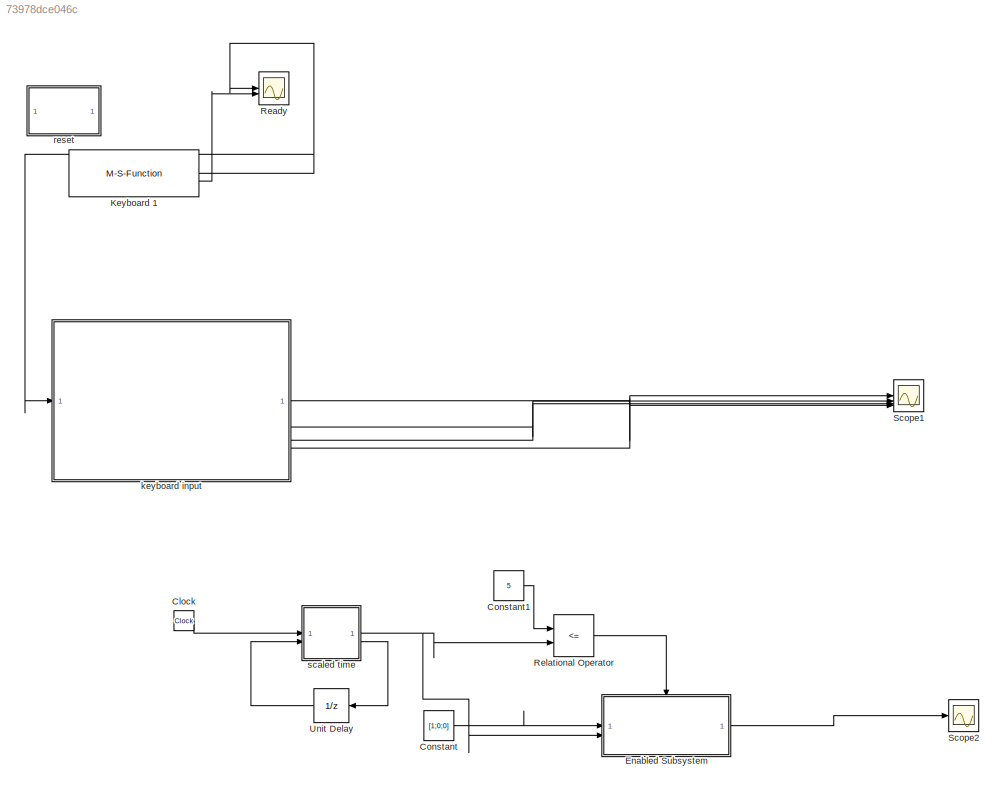
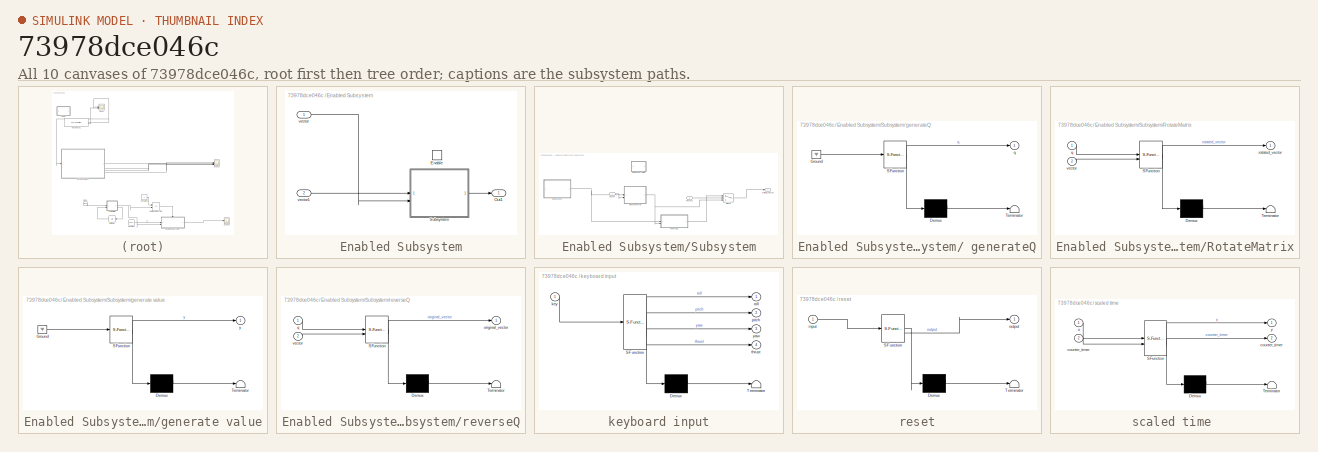
[diagram: thumbnail index - all 10 canvases of the model, root first then tree order]
MODEL slx_73978dce046c
KIND model
CONFIG AbsTol = auto
CONFIG EnableMultiTasking = off
CONFIG FixedStep = 0.01
CONFIG MaxStep = auto
CONFIG MinStep = auto
CONFIG RelTol = 1e-3
CONFIG SampleTimeConstraint = Unconstrained
CONFIG SolverName = FixedStepAuto
CONFIG StartTime = 0.0
CONFIG StopTime = inf
BLOCK [Clock] Clock
BLOCK [Constant] Constant
  Value = [1;0;0]
BLOCK [Constant] Constant1
  Value = 5
BLOCK [SubSystem] Enabled Subsystem
  TreatAsAtomicUnit = on
BLOCK [EnablePort] Enabled Subsystem/Enable
BLOCK [Outport] Enabled Subsystem/Out1
BLOCK [SubSystem] Enabled Subsystem/Subsystem
BLOCK [SubSystem] Enabled Subsystem/Subsystem/ generateQ
  ErrorFcn = Stateflow.Translate.translate
  PermitHierarchicalResolution = ExplicitOnly
  SFBlockType = MATLAB Function
  TreatAsAtomicUnit = on
BLOCK [Demux] Enabled Subsystem/Subsystem/ generateQ/ Demux 
  Outputs = 1
BLOCK [Ground] Enabled Subsystem/Subsystem/ generateQ/ Ground 
BLOCK [S-Function] Enabled Subsystem/Subsystem/ generateQ/ SFunction 
  EnableBusSupport = on
  FunctionName = sf_sfun
  PortCounts = [1 2]
  SFcnIsStateOwnerBlock = off
  SFunctionDeploymentMode = off
  Tag = Stateflow S-Function 2
BLOCK [Terminator] Enabled Subsystem/Subsystem/ generateQ/ Terminator 
BLOCK [Outport] Enabled Subsystem/Subsystem/ generateQ/q
BLOCK [SubSystem] Enabled Subsystem/Subsystem/RotateMatrix
  ErrorFcn = Stateflow.Translate.translate
  PermitHierarchicalResolution = ExplicitOnly
  SFBlockType = MATLAB Function
  TreatAsAtomicUnit = on
BLOCK [Demux] Enabled Subsystem/Subsystem/RotateMatrix/ Demux 
  Outputs = 1
BLOCK [S-Function] Enabled Subsystem/Subsystem/RotateMatrix/ SFunction 
  EnableBusSupport = on
  FunctionName = sf_sfun
  PortCounts = [2 2]
  SFcnIsStateOwnerBlock = off
  SFunctionDeploymentMode = off
  Tag = Stateflow S-Function 1
BLOCK [Terminator] Enabled Subsystem/Subsystem/RotateMatrix/ Terminator 
BLOCK [Inport] Enabled Subsystem/Subsystem/RotateMatrix/q
BLOCK [Outport] Enabled Subsystem/Subsystem/RotateMatrix/rotated_vector
BLOCK [Inport] Enabled Subsystem/Subsystem/RotateMatrix/vector
  Port = 2
BLOCK [Switch] Enabled Subsystem/Subsystem/Switch
  Criteria = u2 > Threshold
  InputSameDT = off
  SaturateOnIntegerOverflow = off
  Threshold = 7
BLOCK [SubSystem] Enabled Subsystem/Subsystem/generate value
  Commented = on
  ErrorFcn = Stateflow.Translate.translate
  PermitHierarchicalResolution = ExplicitOnly
  SFBlockType = MATLAB Function
  TreatAsAtomicUnit = on
BLOCK [Demux] Enabled Subsystem/Subsystem/generate value/ Demux 
  Outputs = 1
BLOCK [Ground] Enabled Subsystem/Subsystem/generate value/ Ground 
BLOCK [S-Function] Enabled Subsystem/Subsystem/generate value/ SFunction 
  EnableBusSupport = on
  FunctionName = sf_sfun
  PortCounts = [1 2]
  SFcnIsStateOwnerBlock = off
  SFunctionDeploymentMode = off
  Tag = Stateflow S-Function 4
BLOCK [Terminator] Enabled Subsystem/Subsystem/generate value/ Terminator 
BLOCK [Outport] Enabled Subsystem/Subsystem/generate value/y
BLOCK [Outport] Enabled Subsystem/Subsystem/original_vector
BLOCK [SubSystem] Enabled Subsystem/Subsystem/reverseQ
  ErrorFcn = Stateflow.Translate.translate
  PermitHierarchicalResolution = ExplicitOnly
  SFBlockType = MATLAB Function
  TreatAsAtomicUnit = on
BLOCK [Demux] Enabled Subsystem/Subsystem/reverseQ/ Demux 
  Outputs = 1
BLOCK [S-Function] Enabled Subsystem/Subsystem/reverseQ/ SFunction 
  EnableBusSupport = on
  FunctionName = sf_sfun
  PortCounts = [2 2]
  SFcnIsStateOwnerBlock = off
  SFunctionDeploymentMode = off
  Tag = Stateflow S-Function 3
BLOCK [Terminator] Enabled Subsystem/Subsystem/reverseQ/ Terminator 
BLOCK [Outport] Enabled Subsystem/Subsystem/reverseQ/original_vector
BLOCK [Inport] Enabled Subsystem/Subsystem/reverseQ/q
BLOCK [Inport] Enabled Subsystem/Subsystem/reverseQ/vector
  Port = 2
BLOCK [Inport] Enabled Subsystem/Subsystem/vector
BLOCK [Inport] Enabled Subsystem/Subsystem/vector1
  Port = 2
BLOCK [Inport] Enabled Subsystem/vector
BLOCK [Inport] Enabled Subsystem/vector1
  Port = 2
BLOCK [M-S-Function] Keyboard 1
  FunctionName = sfun_keyboard_input_v1_2b
BLOCK [Scope] Ready
  Floating = off
  NumInputPorts = 2
  ScopeSpecificationString = Simulink.scopes.TimeScopeBlockCfg('CurrentConfiguration', extmgr.ConfigurationSet(extmgr.Configuration('Core','General UI',true),extmgr.Configuration('Core','Source UI',true),extmgr.Configuration('Sources','WiredSimulink',true,'DataLoggingVariableName','ScopeData1','DataLoggingSaveFormat','StructureWithTime','DataLoggingLimitDataPoints',true,'DataLoggingDecimation','1','DataLoggingDecimateData',tr...<+1688ch>
BLOCK [RelationalOperator] Relational Operator
  InputSameDT = off
  Operator = <=
  OutDataTypeStr = boolean
  RndMeth = Simplest
BLOCK [Scope] Scope1
  Floating = off
  NumInputPorts = 4
  ScopeSpecificationString = Simulink.scopes.TimeScopeBlockCfg('CurrentConfiguration', extmgr.ConfigurationSet(extmgr.Configuration('Core','General UI',true),extmgr.Configuration('Core','Source UI',true),extmgr.Configuration('Sources','WiredSimulink',true,'DataLoggingVariableName','ScopeData1'),extmgr.Configuration('Visuals','Time Domain',true,'SerializedDisplays',{struct('MinYLimReal','-1.00000','MaxYLimReal','1.00000','YLab...<+1616ch>
BLOCK [Scope] Scope2
  Floating = off
  NumInputPorts = 1
  ScopeSpecificationString = Simulink.scopes.TimeScopeBlockCfg('CurrentConfiguration', extmgr.ConfigurationSet(extmgr.Configuration('Core','General UI',true),extmgr.Configuration('Core','Source UI',true),extmgr.Configuration('Sources','WiredSimulink',true,'DataLoggingVariableName','ScopeData1'),extmgr.Configuration('Visuals','Time Domain',true),extmgr.Configuration('Tools','Plot Navigation',true),extmgr.Configuration('Tools',...<+40ch>
BLOCK [UnitDelay] Unit Delay
  HasFrameUpgradeWarning = on
  InitialCondition = [0 25]
  NameLocation = top
  SampleTime = 0.01
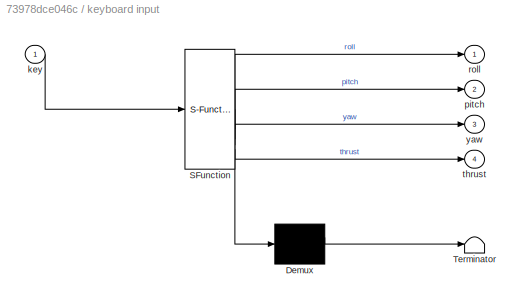
BLOCK [SubSystem] keyboard input
  ErrorFcn = Stateflow.Translate.translate
  PermitHierarchicalResolution = ExplicitOnly
  SFBlockType = MATLAB Function
  TreatAsAtomicUnit = on
BLOCK [Demux] keyboard input/ Demux 
  Outputs = 1
BLOCK [S-Function] keyboard input/ SFunction 
  EnableBusSupport = on
  FunctionName = sf_sfun
  PortCounts = [1 5]
  SFcnIsStateOwnerBlock = off
  SFunctionDeploymentMode = off
  Tag = Stateflow S-Function 5
BLOCK [Terminator] keyboard input/ Terminator 
BLOCK [Inport] keyboard input/key
BLOCK [Outport] keyboard input/pitch
  Port = 2
BLOCK [Outport] keyboard input/roll
BLOCK [Outport] keyboard input/thrust
  Port = 4
BLOCK [Outport] keyboard input/yaw
  Port = 3
BLOCK [SubSystem] reset
  ErrorFcn = Stateflow.Translate.translate
  NameLocation = top
  PermitHierarchicalResolution = ExplicitOnly
  SFBlockType = MATLAB Function
  TreatAsAtomicUnit = on
BLOCK [Demux] reset/ Demux 
  Outputs = 1
BLOCK [S-Function] reset/ SFunction 
  EnableBusSupport = on
  FunctionName = sf_sfun
  PortCounts = [1 2]
  SFcnIsStateOwnerBlock = off
  SFunctionDeploymentMode = off
  Tag = Stateflow S-Function 6
BLOCK [Terminator] reset/ Terminator 
BLOCK [Inport] reset/input
BLOCK [Outport] reset/output
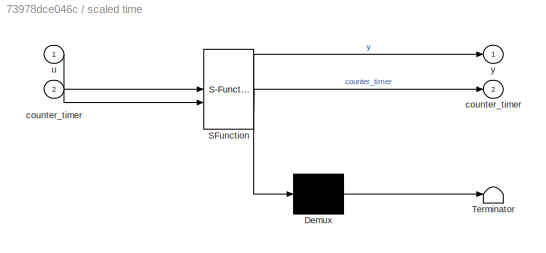
BLOCK [SubSystem] scaled time 
  ErrorFcn = Stateflow.Translate.translate
  PermitHierarchicalResolution = ExplicitOnly
  SFBlockType = MATLAB Function
  TreatAsAtomicUnit = on
BLOCK [Demux] scaled time / Demux 
  Outputs = 1
BLOCK [S-Function] scaled time / SFunction 
  EnableBusSupport = on
  FunctionName = sf_sfun
  PortCounts = [2 3]
  SFcnIsStateOwnerBlock = off
  SFunctionDeploymentMode = off
  Tag = Stateflow S-Function 8
BLOCK [Terminator] scaled time / Terminator 
BLOCK [Outport] scaled time /counter_timer
  Port = 2
BLOCK [Inport] scaled time /counter_timer 
  Port = 2
BLOCK [Inport] scaled time /u
BLOCK [Outport] scaled time /y
LINE Clock:1 -> scaled time :1
LINE Constant1:1 -> Relational Operator:1
LINE Constant:1 -> Enabled Subsystem:1
NET Enabled Subsystem/Subsystem/ generateQ:1 -> Enabled Subsystem/Subsystem/RotateMatrix:1, Enabled Subsystem/Subsystem/reverseQ:1
NET Enabled Subsystem/Subsystem/RotateMatrix:1 -> Enabled Subsystem/Subsystem/Switch:3, Enabled Subsystem/Subsystem/reverseQ:2
LINE Enabled Subsystem/Subsystem/Switch:1 -> Enabled Subsystem/Subsystem/original_vector:1
LINE Enabled Subsystem/Subsystem/reverseQ:1 -> Enabled Subsystem/Subsystem/Switch:1
LINE Enabled Subsystem/Subsystem/vector1:1 -> Enabled Subsystem/Subsystem/Switch:2
LINE Enabled Subsystem/Subsystem/vector:1 -> Enabled Subsystem/Subsystem/RotateMatrix:2
LINE Enabled Subsystem/Subsystem:1 -> Enabled Subsystem/Out1:1
LINE Enabled Subsystem/vector1:1 -> Enabled Subsystem/Subsystem:2
LINE Enabled Subsystem/vector:1 -> Enabled Subsystem/Subsystem:1
LINE Enabled Subsystem:1 -> Scope2:1
NET Keyboard 1:1 -> Ready:1, keyboard input:1
LINE Keyboard 1:2 -> Ready:2
LINE Relational Operator:1 -> Enabled Subsystem:enable
LINE Unit Delay:1 -> scaled time :2
LINE keyboard input:1 -> Scope1:1
LINE keyboard input:2 -> Scope1:2
LINE keyboard input:3 -> Scope1:3
LINE keyboard input:4 -> Scope1:4
NET scaled time :1 -> Enabled Subsystem:2, Relational Operator:2
LINE scaled time :2 -> Unit Delay:1
note: NET lines group one-source signal fan-out (src -> all destinations, sorted); 1:1 wires keep LINE
CHART Enabled
Subsystem/Subsystem/RotateMatrix states=1 transitions=1
  STATE_LABEL 'eML_blk_kernel()'
  STATE_LABEL 'SCRIPT:\nfunction rotated_vector = applyQuaternionRotation(q, vector)\n    % quaternion components\n    w = q(1);\n    x = q(2);\n    y = q(3);\n    z = q(4);\n    % Quaternion rotation matrix\n    R = [1 - 2*y^2 - 2*z^2, 2*x*y - 2*z*w, 2*x*z + 2*y*w;\n         2*x*y + 2*z*w, 1 - 2*x^2 - 2*z^2, 2*y*z - 2*x*w;\n         2*x*z - 2*y*w, 2*y*z + 2*x*w, 1 - 2*x^2 - 2*y^2];\n    % rotate\n    rotated_vector = R * v...<+11ch>'
CHART Enabled
Subsystem/Subsystem/ generateQ states=1 transitions=1
  STATE_LABEL 'eML_blk_kernel()'
  STATE_LABEL 'SCRIPT:\nfunction q = generateQuaternion()\n    %angle in radians (45 degrees) or beta\n    angle_radians = deg2rad(45);\n    % Fixed axis \n    axis = [0; 0; 1];\n    % Calculate the quaternion\n    q = [cos(angle_radians / 2); sin(angle_radians / 2) * axis];\nend\n'
CHART Enabled
Subsystem/Subsystem/reverseQ states=1 transitions=1
  STATE_LABEL 'eML_blk_kernel()'
  STATE_LABEL 'SCRIPT:\nfunction original_vector = revertQuaternionRotation(q, vector)\n    % Extract quaternion components\n    w = q(1);\n    x = -q(2);\n    y = -q(3);\n    z = -q(4);\n    % Inverse quaternion (conjugate for unit quaternion)\n    % Apply inverse rotation\n     % Quaternion rotation matrix again but with the inverse quartonion\n     % this time\n    R = [1 - 2*y^2 - 2*z^2, 2*x*y - 2*z*w, 2*x*z + 2*y*w;\n ...<+190ch>'
CHART Enabled
Subsystem/Subsystem/generate value states=1 transitions=1
  STATE_LABEL 'eML_blk_kernel()'
  STATE_LABEL 'SCRIPT:\nfunction y = random_counter()\n    persistent counter;\n    \n    % Initialize counter if not already initialized\n    if isempty(counter)\n        counter = 0;\n    end\n    \n    % Increment counter\n    counter = counter + 1;\n    display(counter)\n    % Check if counter has reached a random interval between 0 and 20\n    if counter >= 2\n        \n        % Reset counter to 0\n        counter = 0;\n  ...<+32ch>'
CHART keyboard input states=1 transitions=1
  STATE_LABEL 'eML_blk_kernel()'
  STATE_LABEL 'SCRIPT:\n function [roll, pitch, yaw, thrust] = keyboard(key)\n    pitch_increment = 0.1;\n    roll_increment = 0.1;\n    yaw_increment = 0.1;\n    thrust_increment = 0.1;\n    \n    % Initialize\n\n    roll = 0;\n    pitch = 0;\n    yaw = 0;\n    thrust = 0;\n\n   \n    persistent prev_roll prev_pitch prev_yaw prev_thrust counter;\n    \n    \n    if isempty(prev_roll), prev_roll = 0; end\n    if isempty(prev_pitch...<+1611ch>'
CHART reset states=1 transitions=1
  STATE_LABEL 'eML_blk_kernel()'
  STATE_LABEL 'SCRIPT:\nfunction output = reset_value(input)\n    % Used value\n    persistent used;\n    if isempty(used)\n       \n        used = false;\n    end\n    \n    \n    if ~used\n        output = input;\n       \n        used = true;\n    else\n        output = 0;\n    end\nend\n'
CHART scaled time  states=1 transitions=1
  STATE_LABEL 'eML_blk_kernel()'
  STATE_LABEL 'SCRIPT:\nfunction [y,counter_timer] = fcn(u,counter_timer)\n \nif u == counter_timer(2)\n   counter_timer(1) = counter_timer(1) +1; \n   counter_timer(2) = counter_timer(2) + 25;\n      \nend\nif counter_timer(1) == 11\n  counter_timer(1) = 0;\nend\n\ny = counter_timer(1);'
CHART  states=0 transitions=0
CHART  states=0 transitions=0
CHART  states=0 transitions=0
CHART  states=0 transitions=0
CHART  states=0 transitions=0
CHART  states=0 transitions=0
CHART  states=0 transitions=0
